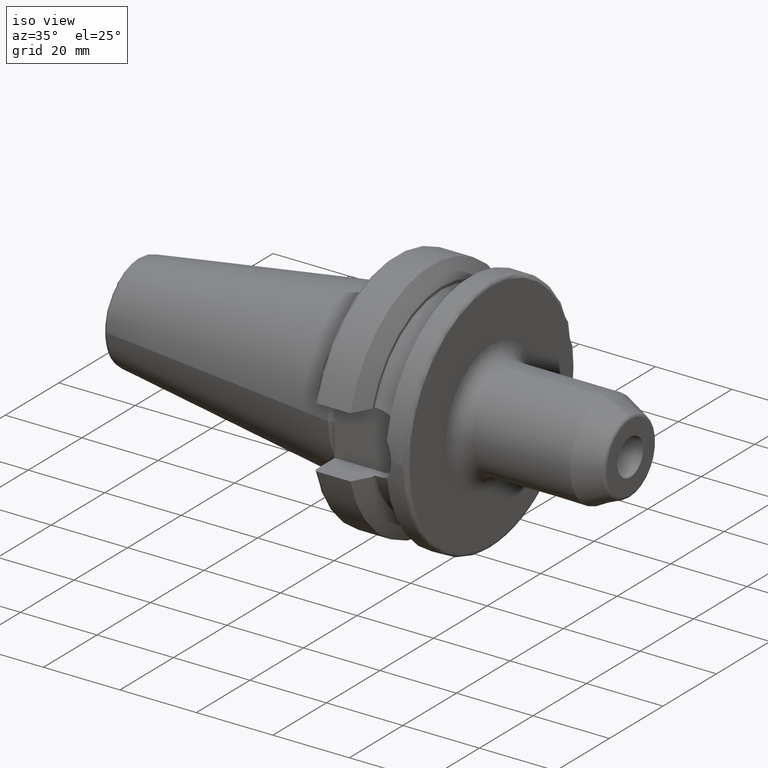
[diagram: clean part render]
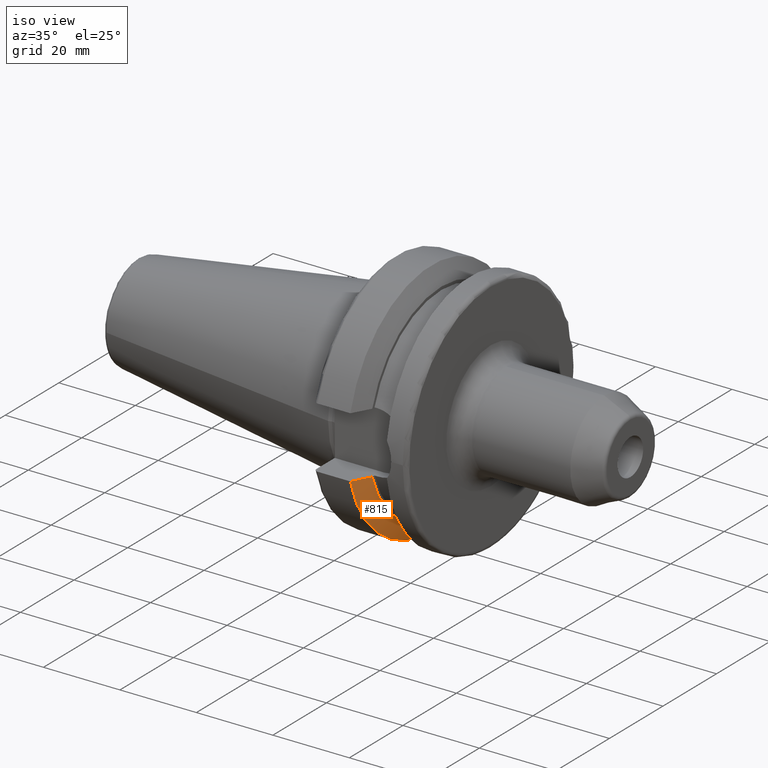
[diagram: same view with one face highlighted and labeled with its STEP entity id]
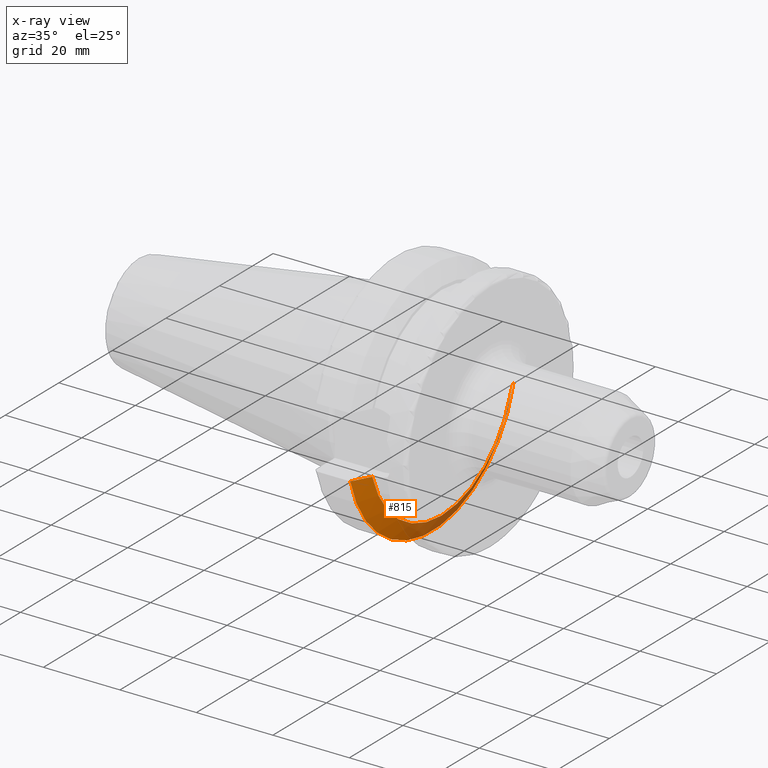
[diagram: x-ray of the same camera — body ghosted, the highlighted face saturated]
A machine part, iso view. The second image highlights one B-rep face of the part: STEP entity #815.
The next image is the same camera in x-ray: the body ghosted, the highlighted face saturated — about 32% of this face is hidden behind the body in this view.
In plain terms, the highlighted conical surface has half-angle 60.125 deg.
Its self-contained STEP definition (entity closure, byte-faithful):
#16=(
BOUNDED_CURVE()
B_SPLINE_CURVE(2,(#1562,#1563,#1564),.UNSPECIFIED.,.F.,.F.)
B_SPLINE_CURVE_WITH_KNOTS((3,3),(0.,0.52358279083281),.UNSPECIFIED.)
CURVE()
GEOMETRIC_REPRESENTATION_ITEM()
RATIONAL_B_SPLINE_CURVE((1.,1.00307360097546,1.))
REPRESENTATION_ITEM('')
);
#17=(
BOUNDED_CURVE()
B_SPLINE_CURVE(2,(#1619,#1620,#1621),.UNSPECIFIED.,.F.,.F.)
B_SPLINE_CURVE_WITH_KNOTS((3,3),(0.,0.52358279083281),.UNSPECIFIED.)
CURVE()
GEOMETRIC_REPRESENTATION_ITEM()
RATIONAL_B_SPLINE_CURVE((1.,1.00307360097546,1.))
REPRESENTATION_ITEM('')
);
#38=CONICAL_SURFACE('',#911,29.2970358274569,1.0493792127616);
#83=CIRCLE('',#910,27.0940716549138);
#84=CIRCLE('',#912,31.5000000000001);
#150=FACE_OUTER_BOUND('',#203,.T.);
#203=EDGE_LOOP('',(#660,#661,#662,#663));
#383=VERTEX_POINT('',#1559);
#384=VERTEX_POINT('',#1561);
#393=VERTEX_POINT('',#1613);
#394=VERTEX_POINT('',#1617);
#475=EDGE_CURVE('',#384,#383,#16,.T.);
#491=EDGE_CURVE('',#384,#393,#83,.T.);
#493=EDGE_CURVE('',#383,#394,#84,.T.);
#494=EDGE_CURVE('',#394,#393,#17,.T.);
#660=ORIENTED_EDGE('',*,*,#475,.T.);
#661=ORIENTED_EDGE('',*,*,#493,.T.);
#662=ORIENTED_EDGE('',*,*,#494,.T.);
#663=ORIENTED_EDGE('',*,*,#491,.F.);
#815=ADVANCED_FACE('',(#150),#38,.T.);
#910=AXIS2_PLACEMENT_3D('',#1614,#1086,#1087);
#911=AXIS2_PLACEMENT_3D('',#1616,#1089,#1090);
#912=AXIS2_PLACEMENT_3D('',#1618,#1091,#1092);
#1086=DIRECTION('center_axis',(1.,0.,0.));
#1087=DIRECTION('ref_axis',(0.,0.,-1.));
#1089=DIRECTION('center_axis',(-1.,0.,0.));
#1090=DIRECTION('ref_axis',(0.,1.,0.));
#1091=DIRECTION('center_axis',(1.,0.,0.));
#1092=DIRECTION('ref_axis',(0.,0.,-1.));
#1559=CARTESIAN_POINT('',(11.5690363073382,-30.4540227227866,-8.05));
#1561=CARTESIAN_POINT('',(14.1,-25.8705666509569,-8.05));
#1562=CARTESIAN_POINT('Ctrl Pts',(14.1,-25.8705666509569,-8.05));
#1563=CARTESIAN_POINT('Ctrl Pts',(12.9374976962938,-27.989970265181,-8.05));
#1564=CARTESIAN_POINT('Ctrl Pts',(11.5690363073382,-30.4540227227866,-8.05));
#1613=CARTESIAN_POINT('',(14.1,25.8705666509569,-8.05));
#1614=CARTESIAN_POINT('Origin',(14.1,0.,0.));
#1616=CARTESIAN_POINT('Origin',(12.8345181536691,0.,0.));
#1617=CARTESIAN_POINT('',(11.5690363073382,30.4540227227866,-8.05));
#1618=CARTESIAN_POINT('Origin',(11.5690363073382,0.,0.));
#1619=CARTESIAN_POINT('Ctrl Pts',(11.5690363073382,30.4540227227866,-8.05));
#1620=CARTESIAN_POINT('Ctrl Pts',(12.9374976962938,27.989970265181,-8.05));
#1621=CARTESIAN_POINT('Ctrl Pts',(14.1,25.8705666509569,-8.05));